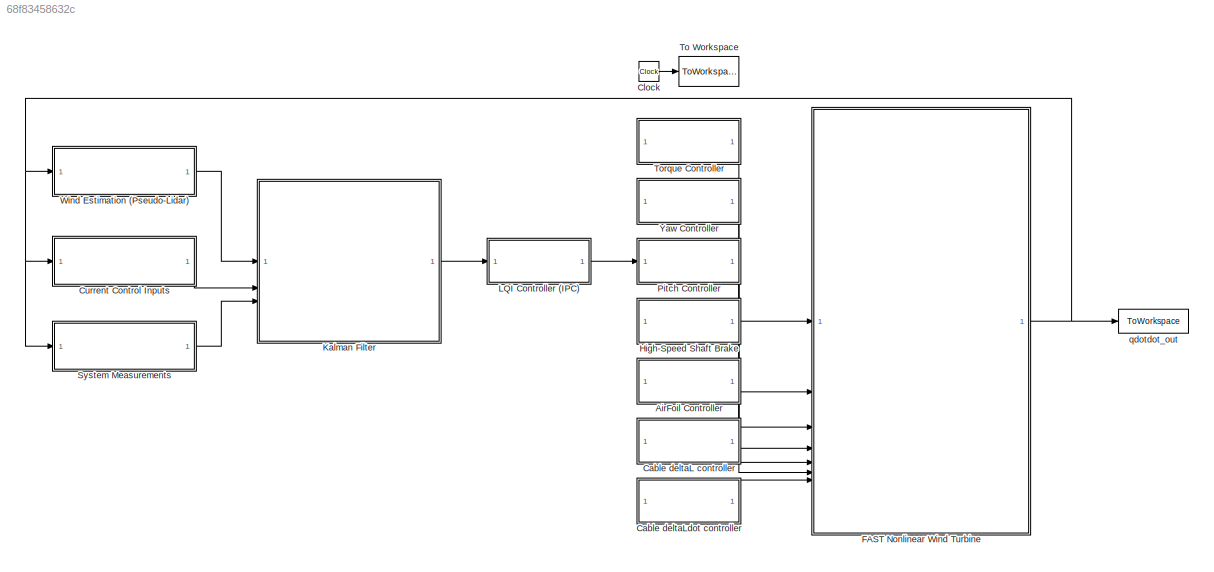
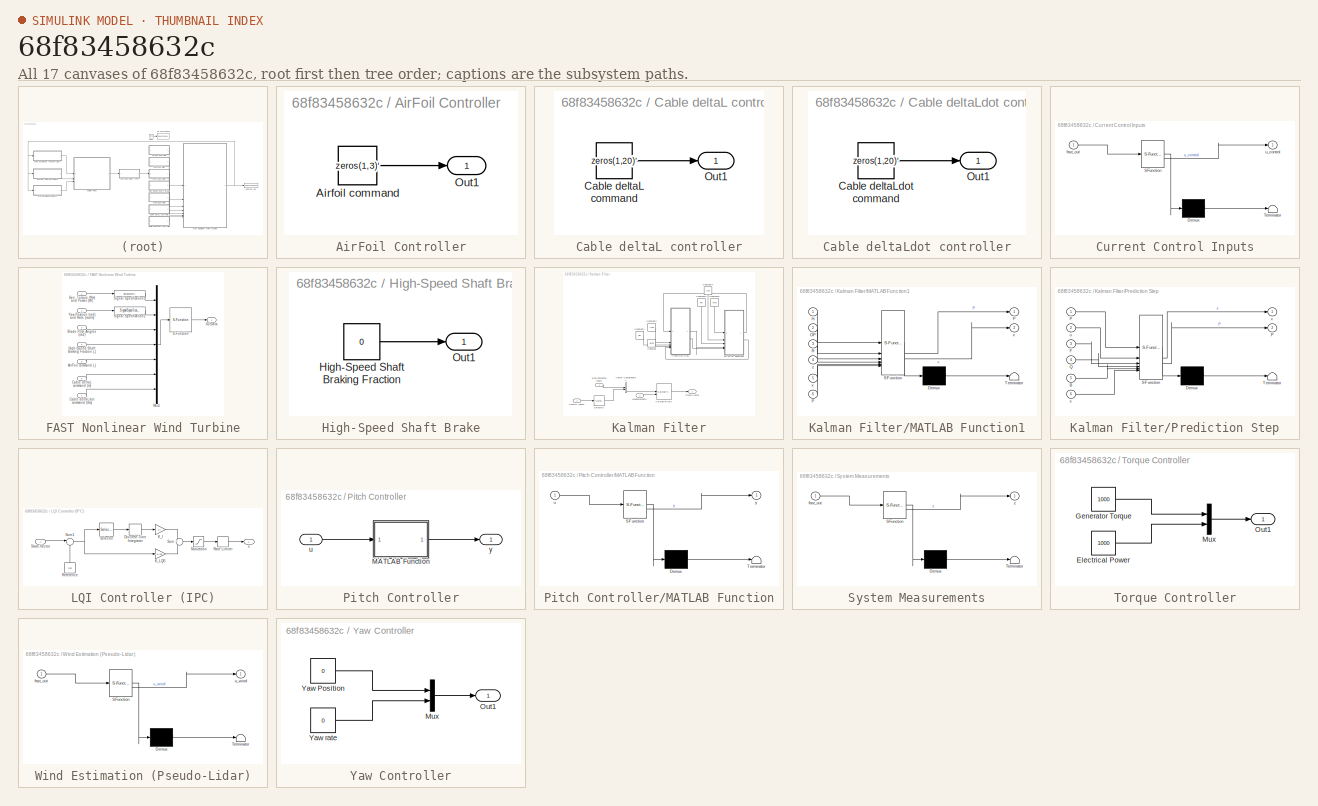
[diagram: thumbnail index - all 17 canvases of the model, root first then tree order]
MODEL mdl_68f83458632c
KIND model
CONFIG AbsTol = auto
CONFIG EnableMultiTasking = on
CONFIG FixedStep = DT
CONFIG MaxStep = DT
CONFIG MinStep = auto
CONFIG RelTol = 1e-3
CONFIG SampleTimeConstraint = Unconstrained
CONFIG SolverName = ode4
CONFIG StartTime = 0.0
CONFIG StopTime = TMax
BLOCK [SubSystem] AirFoil Controller
BLOCK [Constant] AirFoil Controller/Airfoil command
  Value = zeros(1,3)'
BLOCK [Outport] AirFoil Controller/Out1
BLOCK [SubSystem] Cable deltaL controller
BLOCK [Constant] Cable deltaL controller/Cable deltaL command
  Value = zeros(1,20)'
BLOCK [Outport] Cable deltaL controller/Out1
BLOCK [SubSystem] Cable deltaLdot controller
BLOCK [Constant] Cable deltaLdot controller/Cable deltaLdot command
  Value = zeros(1,20)'
BLOCK [Outport] Cable deltaLdot controller/Out1
BLOCK [Clock] Clock
BLOCK [SubSystem] Current Control Inputs
  ErrorFcn = Stateflow.Translate.translate
  PermitHierarchicalResolution = ExplicitOnly
  SFBlockType = MATLAB Function
  TreatAsAtomicUnit = on
BLOCK [Demux] Current Control Inputs/ Demux 
  Outputs = 1
BLOCK [S-Function] Current Control Inputs/ SFunction 
  EnableBusSupport = on
  FunctionName = sf_sfun
  PortCounts = [1 2]
  SFcnIsStateOwnerBlock = off
  SFunctionDeploymentMode = off
  Tag = Stateflow S-Function 4
BLOCK [Terminator] Current Control Inputs/ Terminator 
BLOCK [Inport] Current Control Inputs/fast_out
BLOCK [Outport] Current Control Inputs/u_control
BLOCK [SubSystem] FAST Nonlinear Wind Turbine
BLOCK [Inport] FAST Nonlinear Wind Turbine/AirFoil command (-)
  Port = 5
BLOCK [Inport] FAST Nonlinear Wind Turbine/Blade Pitch Angles (rad)
  Port = 3
BLOCK [Inport] FAST Nonlinear Wind Turbine/Cable deltaL command (m)
  Port = 6
BLOCK [Inport] FAST Nonlinear Wind Turbine/Cable deltaLdot command (m//s)
  Port = 7
BLOCK [Inport] FAST Nonlinear Wind Turbine/Gen. Torque (Nm) and Power (W)
BLOCK [Inport] FAST Nonlinear Wind Turbine/High-Speed Shaft Braking Fraction (-)
  Port = 4
BLOCK [Mux] FAST Nonlinear Wind Turbine/Mux1
  DisplayOption = bar
  Inputs = 7
BLOCK [Outport] FAST Nonlinear Wind Turbine/OutData
BLOCK [S-Function] FAST Nonlinear Wind Turbine/S-Function
  EnableBusSupport = off
  FunctionName = FAST_SFunc
  Parameters = FAST_InputFileName, TMax, 0
  SFcnIsStateOwnerBlock = off
  SFunctionDeploymentMode = off
BLOCK [SignalSpecification] FAST Nonlinear Wind Turbine/Signal Specification1
  Dimensions = 2
  OutDataTypeStr = double
  SignalType = real
BLOCK [SignalSpecification] FAST Nonlinear Wind Turbine/Signal Specification2
  Dimensions = 2
  OutDataTypeStr = double
  SignalType = real
BLOCK [Inport] FAST Nonlinear Wind Turbine/Yaw Position (rad) and Rate (rad//s)
  Port = 2
BLOCK [SubSystem] High-Speed Shaft Brake
BLOCK [Constant] High-Speed Shaft Brake/High-Speed Shaft Braking Fraction
  Value = 0
BLOCK [Outport] High-Speed Shaft Brake/Out1
BLOCK [SubSystem] Kalman Filter
BLOCK [Constant] Kalman Filter/Constant
  Commented = on
  Value = Bred
BLOCK [Constant] Kalman Filter/Constant1
  Commented = on
  Value = Qkf
BLOCK [Constant] Kalman Filter/Constant2
  Commented = on
  Value = Ared
BLOCK [Constant] Kalman Filter/Constant3
  Commented = on
  NameLocation = left
  Value = Rkf
BLOCK [Constant] Kalman Filter/Constant4
  Commented = on
  NameLocation = left
  Value = y_OP
BLOCK [Constant] Kalman Filter/Constant5
  Commented = on
  NameLocation = right
  Value = Hred
BLOCK [Inport] Kalman Filter/Control Inputs
  Port = 2
BLOCK [Inport] Kalman Filter/Environmental Inputs
BLOCK [Reference] Kalman Filter/Kalman Filter1  REF=ctrlSharedLib/Kalman Filter
  LibrarySourceBlock = cstblocks/State Estimation/Kalman Filter
  SourceBlock = ctrlSharedLib/Kalman Filter
  SourceType = ctrlKalmanFilter
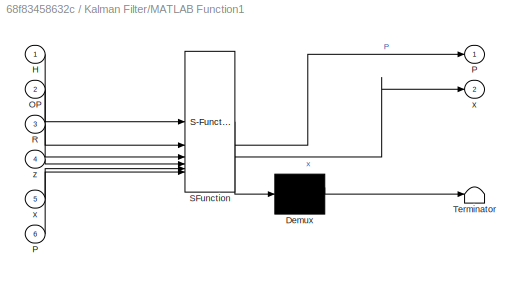
BLOCK [SubSystem] Kalman Filter/MATLAB Function1
  Commented = on
  ErrorFcn = Stateflow.Translate.translate
  PermitHierarchicalResolution = ExplicitOnly
  SFBlockType = MATLAB Function
  TreatAsAtomicUnit = on
BLOCK [Demux] Kalman Filter/MATLAB Function1/ Demux 
  Outputs = 1
BLOCK [S-Function] Kalman Filter/MATLAB Function1/ SFunction 
  EnableBusSupport = on
  FunctionName = sf_sfun
  PortCounts = [6 3]
  SFcnIsStateOwnerBlock = off
  SFunctionDeploymentMode = off
  Tag = Stateflow S-Function 6
BLOCK [Terminator] Kalman Filter/MATLAB Function1/ Terminator 
BLOCK [Inport] Kalman Filter/MATLAB Function1/H
BLOCK [Inport] Kalman Filter/MATLAB Function1/OP
  Port = 2
BLOCK [Outport] Kalman Filter/MATLAB Function1/P
BLOCK [Inport] Kalman Filter/MATLAB Function1/P 
  Port = 6
BLOCK [Inport] Kalman Filter/MATLAB Function1/R
  Port = 3
BLOCK [Outport] Kalman Filter/MATLAB Function1/x
  Port = 2
BLOCK [Inport] Kalman Filter/MATLAB Function1/x 
  Port = 5
BLOCK [Inport] Kalman Filter/MATLAB Function1/z
  Port = 4
BLOCK [Inport] Kalman Filter/Measurements
  Port = 3
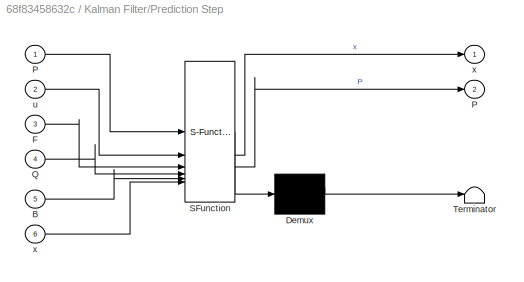
BLOCK [SubSystem] Kalman Filter/Prediction Step
  Commented = on
  ErrorFcn = Stateflow.Translate.translate
  PermitHierarchicalResolution = ExplicitOnly
  SFBlockType = MATLAB Function
  TreatAsAtomicUnit = on
BLOCK [Demux] Kalman Filter/Prediction Step/ Demux 
  Outputs = 1
BLOCK [S-Function] Kalman Filter/Prediction Step/ SFunction 
  EnableBusSupport = on
  FunctionName = sf_sfun
  PortCounts = [6 3]
  SFcnIsStateOwnerBlock = off
  SFunctionDeploymentMode = off
  Tag = Stateflow S-Function 3
BLOCK [Terminator] Kalman Filter/Prediction Step/ Terminator 
BLOCK [Inport] Kalman Filter/Prediction Step/B
  Port = 5
BLOCK [Inport] Kalman Filter/Prediction Step/F
  Port = 3
BLOCK [Outport] Kalman Filter/Prediction Step/P
  Port = 2
BLOCK [Inport] Kalman Filter/Prediction Step/P 
BLOCK [Inport] Kalman Filter/Prediction Step/Q
  Port = 4
BLOCK [Inport] Kalman Filter/Prediction Step/u
  Port = 2
BLOCK [Outport] Kalman Filter/Prediction Step/x
BLOCK [Inport] Kalman Filter/Prediction Step/x 
  Port = 6
BLOCK [Selector] Kalman Filter/Selector1
  IndexOptions = Index vector (dialog)
  Indices = [5,4]
  InputPortWidth = 5
  OutputSizes = 1
BLOCK [Outport] Kalman Filter/State-Vector
BLOCK [Concatenate] Kalman Filter/Vector Concatenate1
BLOCK [SubSystem] LQI Controller (IPC)
BLOCK [DiscreteIntegrator] LQI Controller (IPC)/Discrete-Time Integrator
  ICPrevOutput = DiscIntNeverNeededParam
  ICPrevScaledInput = DiscIntNeverNeededParam
  InitialConditionSetting = Auto
  SampleTime = -1
BLOCK [Gain] LQI Controller (IPC)/K_I
  Gain = Ki
BLOCK [Gain] LQI Controller (IPC)/K_LQG
  Gain = -Klqg
  Multiplication = Matrix(K*u)
BLOCK [RateLimiter] LQI Controller (IPC)/Rate Limiter
  FallingSlewLimit = Min_pitch_rate
  RisingSlewLimit = Max_pitch_rate
  SampleTimeMode = inherited
BLOCK [Constant] LQI Controller (IPC)/Reference
  NameLocation = right
  Value = Ref
BLOCK [Saturate] LQI Controller (IPC)/Saturation
  LowerLimit = Min_pitch
  UpperLimit = Max_pitch
BLOCK [Selector] LQI Controller (IPC)/Selector
  IndexOptions = Index vector (dialog)
  Indices = [10]
  InputPortWidth = 13
  OutputSizes = 1
BLOCK [Inport] LQI Controller (IPC)/State-Vector
BLOCK [Sum] LQI Controller (IPC)/Sum
  Inputs = +|-
BLOCK [Sum] LQI Controller (IPC)/Sum1
  Inputs = |+-
BLOCK [Outport] LQI Controller (IPC)/u
BLOCK [SubSystem] Pitch Controller
BLOCK [SubSystem] Pitch Controller/MATLAB Function
  ErrorFcn = Stateflow.Translate.translate
  PermitHierarchicalResolution = ExplicitOnly
  SFBlockType = MATLAB Function
  TreatAsAtomicUnit = on
BLOCK [Demux] Pitch Controller/MATLAB Function/ Demux 
  Outputs = 1
BLOCK [S-Function] Pitch Controller/MATLAB Function/ SFunction 
  EnableBusSupport = on
  FunctionName = sf_sfun
  PortCounts = [1 2]
  SFcnIsStateOwnerBlock = off
  SFunctionDeploymentMode = off
  Tag = Stateflow S-Function 2
BLOCK [Terminator] Pitch Controller/MATLAB Function/ Terminator 
BLOCK [Inport] Pitch Controller/MATLAB Function/u
BLOCK [Outport] Pitch Controller/MATLAB Function/y
BLOCK [Inport] Pitch Controller/u
BLOCK [Outport] Pitch Controller/y
BLOCK [SubSystem] System Measurements
  ErrorFcn = Stateflow.Translate.translate
  PermitHierarchicalResolution = ExplicitOnly
  SFBlockType = MATLAB Function
  TreatAsAtomicUnit = on
BLOCK [Demux] System Measurements/ Demux 
  Outputs = 1
BLOCK [S-Function] System Measurements/ SFunction 
  EnableBusSupport = on
  FunctionName = sf_sfun
  PortCounts = [1 2]
  SFcnIsStateOwnerBlock = off
  SFunctionDeploymentMode = off
  Tag = Stateflow S-Function 1
BLOCK [Terminator] System Measurements/ Terminator 
BLOCK [Inport] System Measurements/fast_out
BLOCK [Outport] System Measurements/z
BLOCK [ToWorkspace] To Workspace
  MaxDataPoints = inf
  SampleTime = -1
  VariableName = Time
BLOCK [SubSystem] Torque Controller
BLOCK [Constant] Torque Controller/Electrical Power
  Value = 1000
BLOCK [Constant] Torque Controller/Generator Torque
  Value = 1000
BLOCK [Mux] Torque Controller/Mux
  DisplayOption = bar
  Inputs = 2
BLOCK [Outport] Torque Controller/Out1
BLOCK [SubSystem] Wind Estimation (Pseudo-Lidar)
  ErrorFcn = Stateflow.Translate.translate
  PermitHierarchicalResolution = ExplicitOnly
  SFBlockType = MATLAB Function
  TreatAsAtomicUnit = on
BLOCK [Demux] Wind Estimation (Pseudo-Lidar)/ Demux 
  Outputs = 1
BLOCK [S-Function] Wind Estimation (Pseudo-Lidar)/ SFunction 
  EnableBusSupport = on
  FunctionName = sf_sfun
  PortCounts = [1 2]
  SFcnIsStateOwnerBlock = off
  SFunctionDeploymentMode = off
  Tag = Stateflow S-Function 5
BLOCK [Terminator] Wind Estimation (Pseudo-Lidar)/ Terminator 
BLOCK [Inport] Wind Estimation (Pseudo-Lidar)/fast_out
BLOCK [Outport] Wind Estimation (Pseudo-Lidar)/u_wind
BLOCK [SubSystem] Yaw Controller
BLOCK [Mux] Yaw Controller/Mux
  DisplayOption = bar
  Inputs = 2
BLOCK [Outport] Yaw Controller/Out1
BLOCK [Constant] Yaw Controller/Yaw Position
  Value = 0
BLOCK [Constant] Yaw Controller/Yaw rate
  Value = 0
BLOCK [ToWorkspace] qdotdot_out
  MaxDataPoints = inf
  SampleTime = -1
  VariableName = OutData
LINE AirFoil Controller/Airfoil command:1 -> AirFoil Controller/Out1:1
LINE AirFoil Controller:1 -> FAST Nonlinear Wind Turbine:5
LINE Cable deltaL controller/Cable deltaL command:1 -> Cable deltaL controller/Out1:1
LINE Cable deltaL controller:1 -> FAST Nonlinear Wind Turbine:6
LINE Cable deltaLdot controller/Cable deltaLdot command:1 -> Cable deltaLdot controller/Out1:1
LINE Cable deltaLdot controller:1 -> FAST Nonlinear Wind Turbine:7
LINE Clock:1 -> To Workspace:1
LINE Current Control Inputs:1 -> Kalman Filter:2
LINE FAST Nonlinear Wind Turbine/AirFoil command (-):1 -> FAST Nonlinear Wind Turbine/Mux1:5
LINE FAST Nonlinear Wind Turbine/Blade Pitch Angles (rad):1 -> FAST Nonlinear Wind Turbine/Mux1:3
LINE FAST Nonlinear Wind Turbine/Cable deltaL command (m):1 -> FAST Nonlinear Wind Turbine/Mux1:6
LINE FAST Nonlinear Wind Turbine/Cable deltaLdot command (m//s):1 -> FAST Nonlinear Wind Turbine/Mux1:7
LINE FAST Nonlinear Wind Turbine/Gen. Torque (Nm) and Power (W):1 -> FAST Nonlinear Wind Turbine/Signal Specification1:1
LINE FAST Nonlinear Wind Turbine/High-Speed Shaft Braking Fraction (-):1 -> FAST Nonlinear Wind Turbine/Mux1:4
LINE FAST Nonlinear Wind Turbine/Mux1:1 -> FAST Nonlinear Wind Turbine/S-Function:1
LINE FAST Nonlinear Wind Turbine/S-Function:1 -> FAST Nonlinear Wind Turbine/OutData:1
LINE FAST Nonlinear Wind Turbine/Signal Specification1:1 -> FAST Nonlinear Wind Turbine/Mux1:1
LINE FAST Nonlinear Wind Turbine/Signal Specification2:1 -> FAST Nonlinear Wind Turbine/Mux1:2
LINE FAST Nonlinear Wind Turbine/Yaw Position (rad) and Rate (rad//s):1 -> FAST Nonlinear Wind Turbine/Signal Specification2:1
NET FAST Nonlinear Wind Turbine:1 -> Current Control Inputs:1, System Measurements:1, Wind Estimation (Pseudo-Lidar):1, qdotdot_out:1
LINE High-Speed Shaft Brake/High-Speed Shaft Braking Fraction:1 -> High-Speed Shaft Brake/Out1:1
LINE High-Speed Shaft Brake:1 -> FAST Nonlinear Wind Turbine:4
LINE Kalman Filter/Constant1:1 -> Kalman Filter/Prediction Step:4
LINE Kalman Filter/Constant2:1 -> Kalman Filter/Prediction Step:3
LINE Kalman Filter/Constant3:1 -> Kalman Filter/MATLAB Function1:3
LINE Kalman Filter/Constant4:1 -> Kalman Filter/MATLAB Function1:2
LINE Kalman Filter/Constant5:1 -> Kalman Filter/MATLAB Function1:1
LINE Kalman Filter/Constant:1 -> Kalman Filter/Prediction Step:5
LINE Kalman Filter/Control Inputs:1 -> Kalman Filter/Selector1:1
LINE Kalman Filter/Environmental Inputs:1 -> Kalman Filter/Vector Concatenate1:1
LINE Kalman Filter/Kalman Filter1:1 -> Kalman Filter/State-Vector:1
LINE Kalman Filter/MATLAB Function1:1 -> Kalman Filter/Prediction Step:1
LINE Kalman Filter/MATLAB Function1:2 -> Kalman Filter/Prediction Step:6
LINE Kalman Filter/Measurements:1 -> Kalman Filter/Kalman Filter1:2
LINE Kalman Filter/Prediction Step:1 -> Kalman Filter/MATLAB Function1:5
LINE Kalman Filter/Prediction Step:2 -> Kalman Filter/MATLAB Function1:6
LINE Kalman Filter/Selector1:1 -> Kalman Filter/Vector Concatenate1:2
LINE Kalman Filter/Vector Concatenate1:1 -> Kalman Filter/Kalman Filter1:1
LINE Kalman Filter:1 -> LQI Controller (IPC):1
LINE LQI Controller (IPC)/Discrete-Time Integrator:1 -> LQI Controller (IPC)/K_I:1
LINE LQI Controller (IPC)/K_I:1 -> LQI Controller (IPC)/Sum:1
LINE LQI Controller (IPC)/K_LQG:1 -> LQI Controller (IPC)/Sum:2
LINE LQI Controller (IPC)/Rate Limiter:1 -> LQI Controller (IPC)/u:1
LINE LQI Controller (IPC)/Reference:1 -> LQI Controller (IPC)/Sum1:2
LINE LQI Controller (IPC)/Saturation:1 -> LQI Controller (IPC)/Rate Limiter:1
LINE LQI Controller (IPC)/Selector:1 -> LQI Controller (IPC)/Discrete-Time Integrator:1
LINE LQI Controller (IPC)/State-Vector:1 -> LQI Controller (IPC)/Sum1:1
NET LQI Controller (IPC)/Sum1:1 -> LQI Controller (IPC)/K_LQG:1, LQI Controller (IPC)/Selector:1
LINE LQI Controller (IPC)/Sum:1 -> LQI Controller (IPC)/Saturation:1
LINE LQI Controller (IPC):1 -> Pitch Controller:1
LINE Pitch Controller/MATLAB Function:1 -> Pitch Controller/y:1
LINE Pitch Controller/u:1 -> Pitch Controller/MATLAB Function:1
LINE Pitch Controller:1 -> FAST Nonlinear Wind Turbine:3
LINE System Measurements:1 -> Kalman Filter:3
LINE Torque Controller/Electrical Power:1 -> Torque Controller/Mux:2
LINE Torque Controller/Generator Torque:1 -> Torque Controller/Mux:1
LINE Torque Controller/Mux:1 -> Torque Controller/Out1:1
LINE Torque Controller:1 -> FAST Nonlinear Wind Turbine:1
LINE Wind Estimation (Pseudo-Lidar):1 -> Kalman Filter:1
LINE Yaw Controller/Mux:1 -> Yaw Controller/Out1:1
LINE Yaw Controller/Yaw Position:1 -> Yaw Controller/Mux:1
LINE Yaw Controller/Yaw rate:1 -> Yaw Controller/Mux:2
LINE Yaw Controller:1 -> FAST Nonlinear Wind Turbine:2
note: NET lines group one-source signal fan-out (src -> all destinations, sorted); 1:1 wires keep LINE
CHART System Measurements states=1 transitions=1
  STATE_LABEL 'eML_blk_kernel()'
  STATE_LABEL 'SCRIPT:\nfunction z = getMeasurements(fast_out)\n\n%% Extract "Measurements" from FAST Output Vector\nPtfmPitch = fast_out(24); % degrees\nPtfmRoll  = fast_out(23); % degrees\nRotSpeed  = fast_out(6); % RPM\n\nz = [PtfmPitch;\n     RotSpeed];\n'
CHART Pitch Controller/MATLAB Function states=1 transitions=1
  STATE_LABEL 'eML_blk_kernel()'
  STATE_LABEL "SCRIPT:\nfunction y = fcn(u)\n\n% Extract blade pitch\n%current_pitch = u(11);\n\n% Define new blade pitch\n%if current_pitch == 0\n%    blade_pitch = 14;\n%else\n%    adjust = rand;\n%    blade_pitch = 14 + 0.2*(adjust - 0.5);\n%end\n%\n% % Convert degrees to rads\n%blade_pitch = blade_pitch*(pi/180);\n\n% % Output blade pitch\n%y = [blade_pitch;\n%     blade_pitch;\n%     blade_pitch];\n\ny = [u,u,u]';\n"
CHART Kalman Filter/Prediction Step states=1 transitions=1
  STATE_LABEL 'eML_blk_kernel()'
  STATE_LABEL "SCRIPT:\nfunction [x,P] = predict(P,u,F,Q,B,x)\n\n% Update state vector\nx = F*x + B*u;\n\n% Update process covariance\nP = F*P*F' + Q;"
CHART Current Control Inputs states=1 transitions=1
  STATE_LABEL 'eML_blk_kernel()'
  STATE_LABEL 'SCRIPT:\nfunction u_control = getControl(fast_out)\n\n% Extract blade pitch commands from FAST\nblade_pitch_1 = fast_out(11);\nblade_pitch_2 = fast_out(12);\nblade_pitch_3 = fast_out(13);\nblade_pitch_C = mean([blade_pitch_1,blade_pitch_2,blade_pitch_3]);\n\n% Extract generator torque command from FAST\ngen_torque = fast_out(57);\n\nu_control = [blade_pitch_1;\n             blade_pitch_2;\n             blade_pi...<+60ch>'
CHART Wind Estimation
(Pseudo-Lidar) states=1 transitions=1
  STATE_LABEL 'eML_blk_kernel()'
  STATE_LABEL 'SCRIPT:\nfunction u_wind = getWind(fast_out)\n\n% Extract wind from FAST\nwind = fast_out(2);\n\n% Add noise to wind to simulate lidar accuracy\n% ...\n\n% Output wind velocity\nu_wind = wind;'
CHART Kalman Filter/MATLAB Function1 states=1 transitions=1
  STATE_LABEL 'eML_blk_kernel()'
  STATE_LABEL "SCRIPT:\nfunction [P,x] = update(H,OP,R,z,x,P)\n   \nP = P + zeros(size(F));\nx = x + zeros(size(F,1),1);\n\nS = H*P*H' + R; % Project system uncertainty into measurement space & add measurement uncertainty\nK = P*H'*inv(S);\ny = z-(H*x + OP); % Error term\nx = x+K*y;\nKH = K*H;\nP = (eye(size(KH))-KH)*P;\n"
CHART  states=0 transitions=0
CHART  states=0 transitions=0
CHART  states=0 transitions=0
CHART  states=0 transitions=0
CHART  states=0 transitions=0
CHART  states=0 transitions=0
